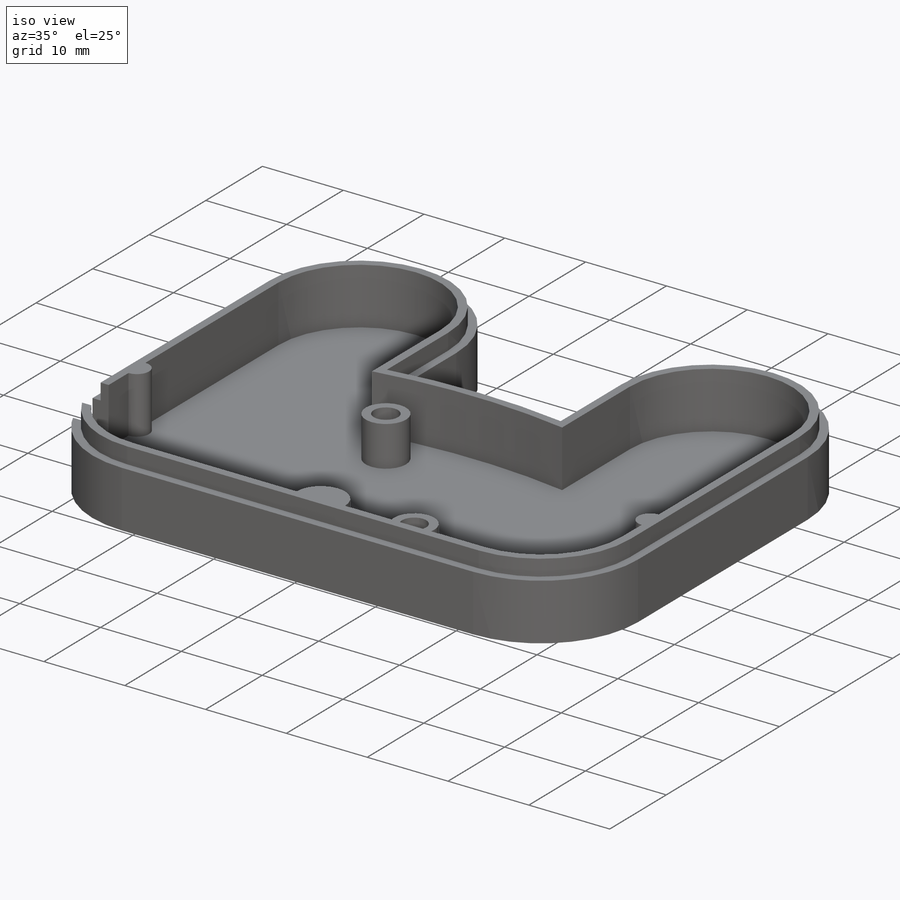
[diagram: iso view]
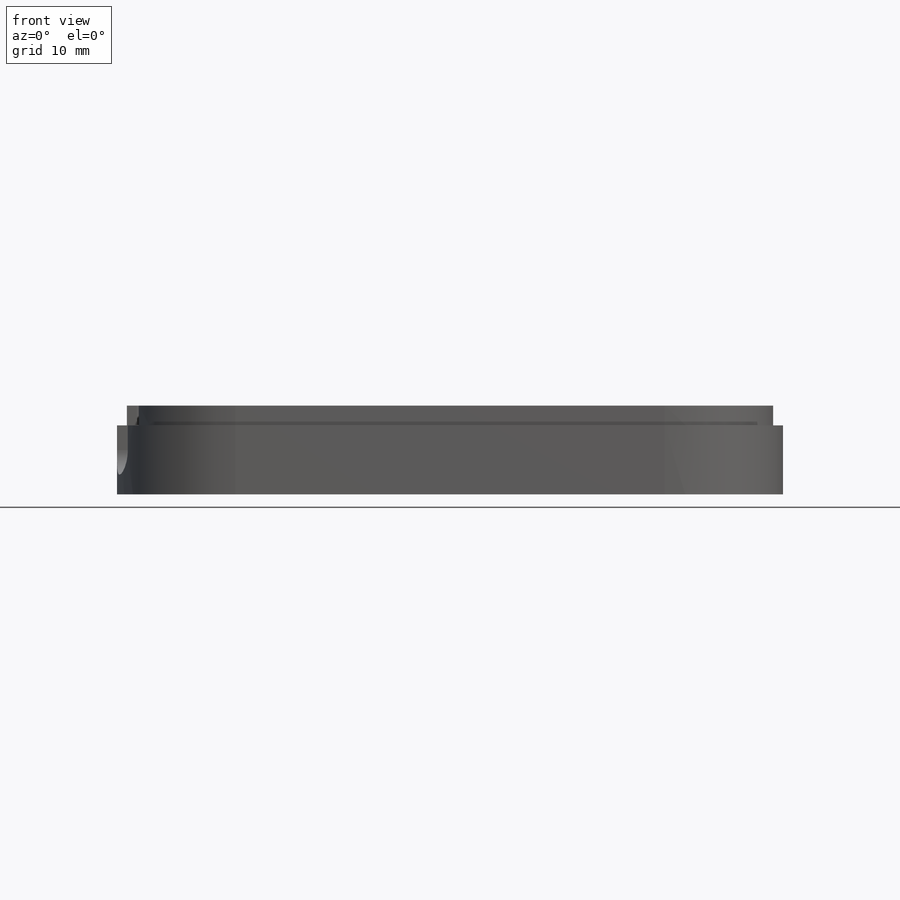
[diagram: front view]
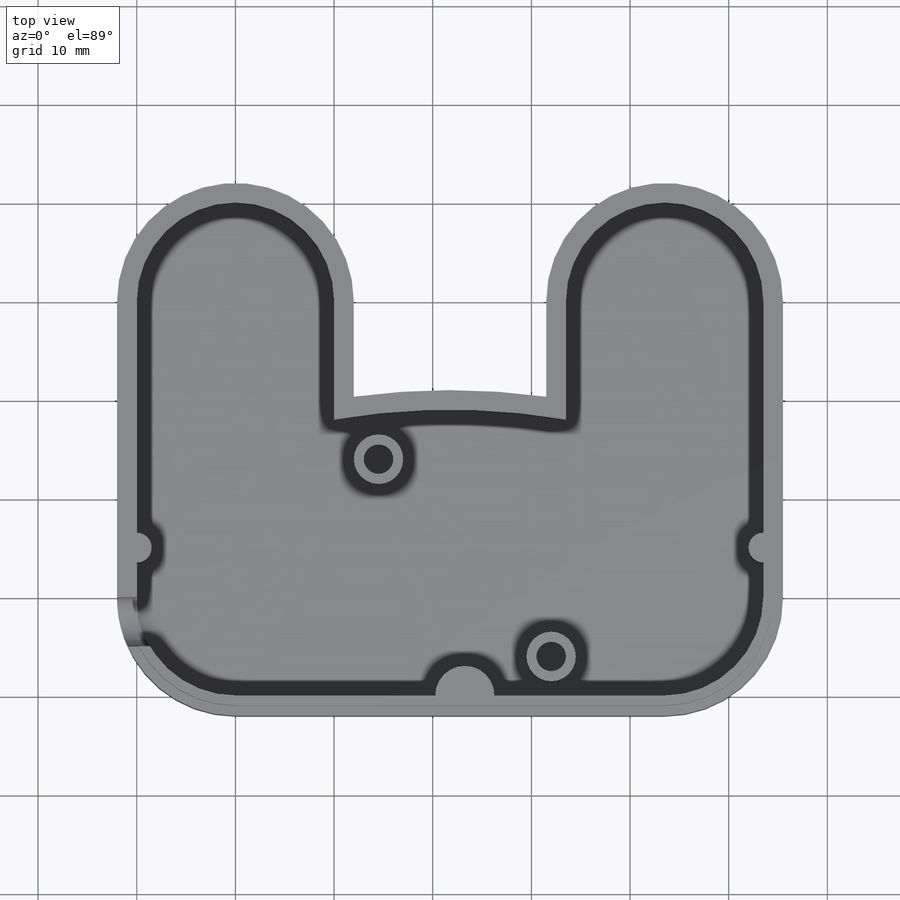
[diagram: top view]
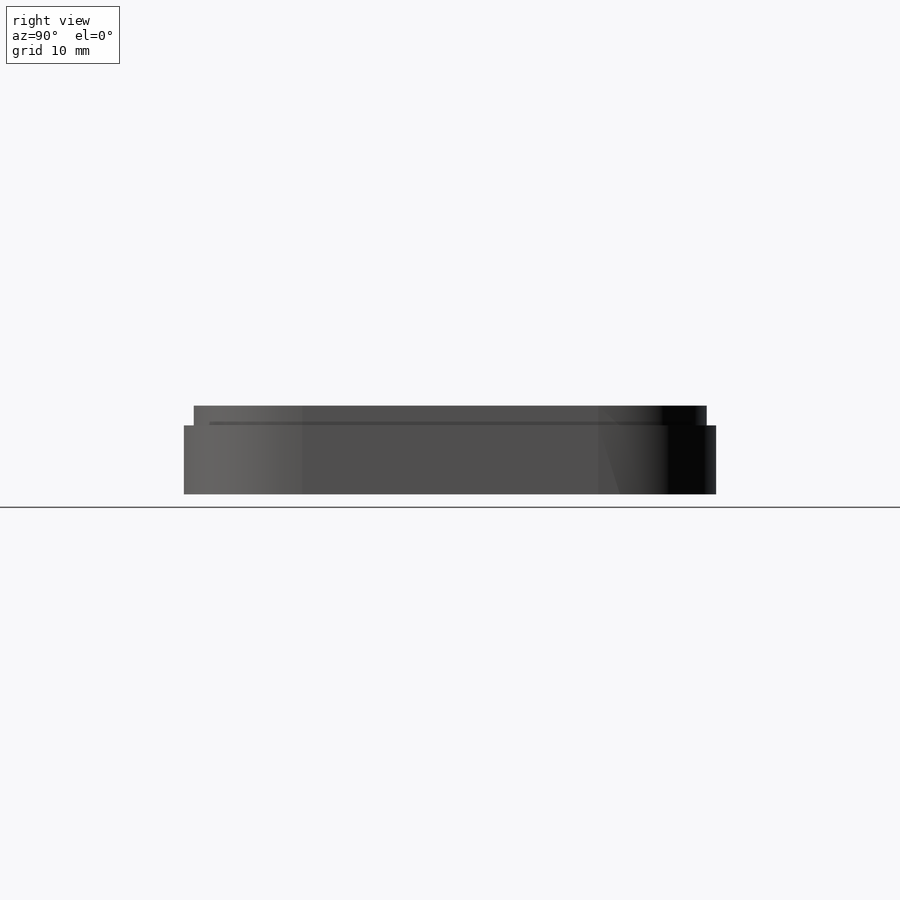
[diagram: right view]
SOLIDWORKS PART (.sldprt)
format: sldprt  version: not decoded by parser v0  size: 620,032 bytes
history: native  units: mm
features: sketch x6, extrude x5, plane x3, material x1, cut_extrude x1 (+10 scaffold rows collapsed)
feature tree (26):
  scaffold x10  (default folders/planes/origin — collapsed)
  material  "材质 <未指定>"
  plane  "前视基准面"
  plane  "上视基准面"
  plane  "右视基准面"
  sketch  "草图1"  dims[c1.D5=10.0mm c1.D6=10.0mm c1.D1=63.5mm c1.D2=28.0mm c1.D3=12.0mm c2.D5=12.0mm c2.D4=20.0mm c2.D6=1.0mm c2.D7=2.0mm c2.D8=1.0mm]
  extrude  "凸台-拉伸1"  Depth=2mm
  extrude  "凸台-拉伸3"  [1 undecoded]
  sketch  "草图1<4>"  dims[D1=9.0mm]
  extrude  "凸台-拉伸5"  [1 undecoded]
  sketch  "草图1<6>"  dims[D1=7.0mm]
  sketch  "草图3"  dims[c1.D2=~2.650822mm c1.D4=2.5mm c1.D6=2.8mm c2.D4=3.0mm c2.D6=6.0mm c2.D8=3.0mm c2.D9=5.0mm c2.D10=3.0mm c2.D11=5.0mm c3.D4=17.5mm c3.D6=31.75mm c3.D5=21.5mm c4.D6=10.25mm c4.D7=6.75mm c4.D8=2.0mm c5.D6=8.25mm c5.D7=~8.778525mm c6.D6=8.75mm c6.D7=~25.545303mm c7.D6=8.75mm c7.D7=20.0mm c7.D3=24.5mm c7.D1=15.0mm c7.D2=24.0mm c8.D3=24.0mm c8.D4=8.0mm c8.D5=3.0mm]
  extrude  "凸台-拉伸8"  Depth=5mm
  extrude  "凸台-拉伸9"  [1 undecoded]
  sketch  "草图3<7>"  dims[D1=7.0mm]
  sketch  "草图4"  dims[c1.D1=~3.388263mm c1.D2=~1.700945mm c2.D1=~4.049941mm c2.D2=~4.049941mm c3.D1=4.0mm]
  cut_extrude  "切除-拉伸2"  Depth=5mm
decode coverage: 9 of 12 modeling features carry decoded parameters
note: ~ marks probable driven/reference dimensions
note: 3 parameter values undecoded
summary: no parameter record found for 3 features
note: suppression state not decoded; provenance and decode notes live in map.json
